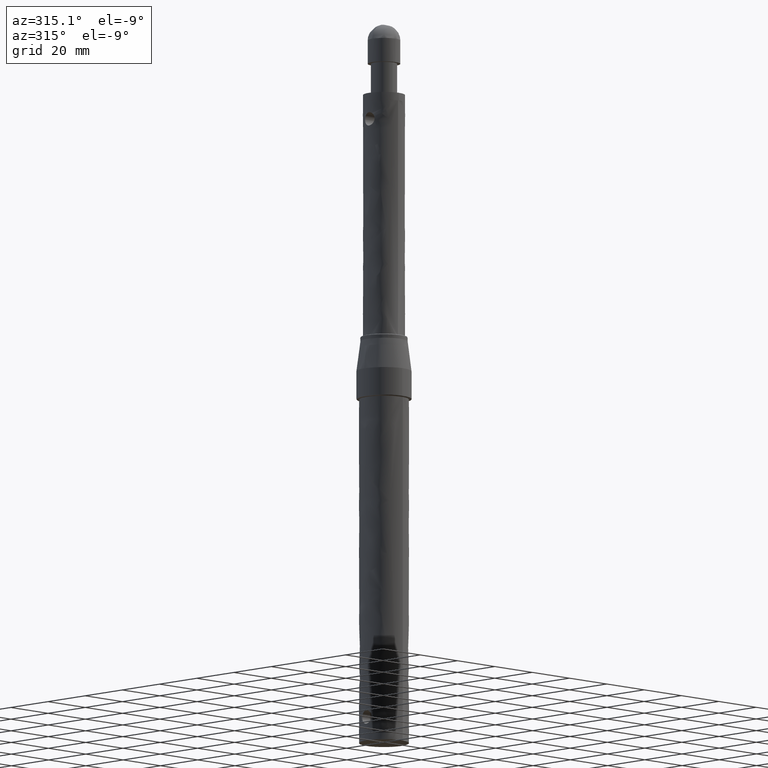
[diagram: clean part render]
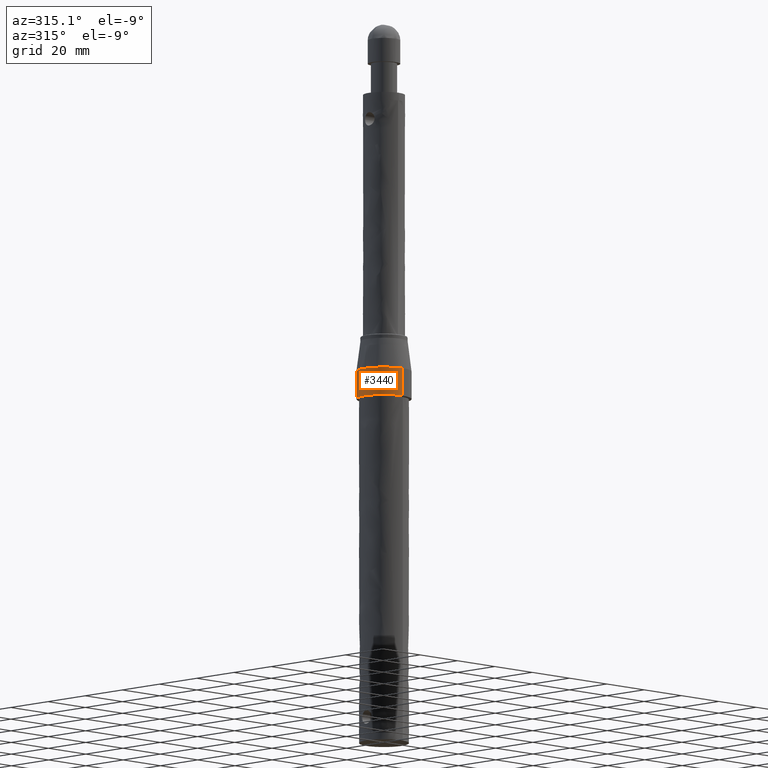
[diagram: same view with one face highlighted and labeled with its STEP entity id]
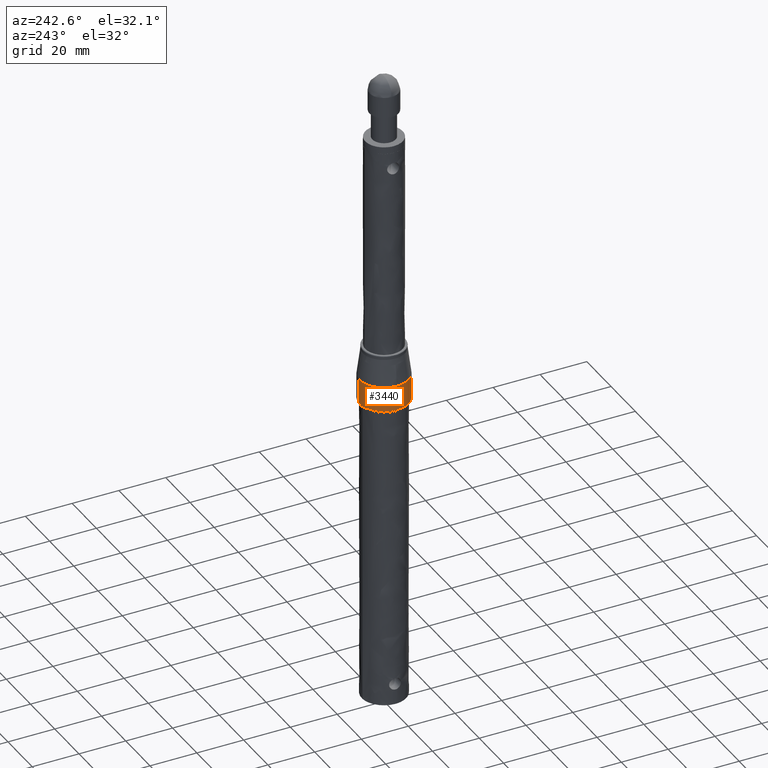
[diagram: same view with one face highlighted and labeled with its STEP entity id]
A machine part, auxiliary view. The second image highlights one B-rep face of the part: STEP entity #3440.
A second angle (auxiliary view) of the same face is appended — the face is thin or edge-on in the first view.
In plain terms, the highlighted face is a freeform B-spline surface patch.
Its self-contained STEP definition (entity closure, byte-faithful):
#2692=CARTESIAN_POINT('',(0.641009665748513,10.480415383404720,-13.136567573650060));
#2693=VERTEX_POINT('',#2692);
#2707=CARTESIAN_POINT('',(-10.500000000763130,0.0,-13.136567573652300));
#2708=VERTEX_POINT('',#2707);
#2709=CARTESIAN_POINT('',(0.641009665748513,10.480415383404726,-13.136567573650058));
#2710=CARTESIAN_POINT('',(0.320804015142102,10.499999999986445,-13.136567573650126));
#2711=CARTESIAN_POINT('',(3.807473E-010,10.499999999986651,-13.136567573650190));
#2712=CARTESIAN_POINT('',(-10.500000000763523,10.499999999993531,-13.136567573652300));
#2713=CARTESIAN_POINT('',(-10.500000000763130,0.0,-13.136567573652300));
#2721=(BOUNDED_CURVE()B_SPLINE_CURVE(2,(#2709,#2710,#2711,#2712,#2713),.UNSPECIFIED.,.F.,.U.)B_SPLINE_CURVE_WITH_KNOTS((3,2,3),(0.239332962238973,0.250000000000000,0.500000000000000),.UNSPECIFIED.)CURVE()GEOMETRIC_REPRESENTATION_ITEM()RATIONAL_B_SPLINE_CURVE((0.976072041666783,0.987502787899873,1.0,0.707106781186547,1.0))REPRESENTATION_ITEM(''));
#2722=EDGE_CURVE('',#2693,#2708,#2721,.T.);
#2779=CARTESIAN_POINT('',(-0.641009665747094,-10.480415383381469,-13.136567573650320));
#2780=VERTEX_POINT('',#2779);
#2781=CARTESIAN_POINT('',(-10.500000000763130,0.0,-13.136567573652300));
#2782=CARTESIAN_POINT('',(-10.500000000763416,-9.877413701624896,-13.136567573652300));
#2783=CARTESIAN_POINT('',(-0.641009665747094,-10.480415383381473,-13.136567573650325));
#2791=(BOUNDED_CURVE()B_SPLINE_CURVE(2,(#2781,#2782,#2783),.UNSPECIFIED.,.F.,.U.)B_SPLINE_CURVE_WITH_KNOTS((3,3),(0.500000000000000,0.739332962226456),.UNSPECIFIED.)CURVE()GEOMETRIC_REPRESENTATION_ITEM()RATIONAL_B_SPLINE_CURVE((1.0,0.719603993301339,0.976072041639956))REPRESENTATION_ITEM(''));
#2792=EDGE_CURVE('',#2708,#2780,#2791,.T.);
#3374=CARTESIAN_POINT('',(0.641009665115999,10.480415383429600,-23.964085811484789));
#3375=CARTESIAN_POINT('',(-9.839405718313600,11.121425048545600,-23.964085811484786));
#3376=CARTESIAN_POINT('',(-10.480415383429600,0.641009665115999,-23.964085811484789));
#3377=CARTESIAN_POINT('',(-11.121425048545600,-9.839405718313600,-23.964085811484786));
#3378=CARTESIAN_POINT('',(-0.641009665115999,-10.480415383429600,-23.964085811484789));
#3379=CARTESIAN_POINT('',(0.641009665115999,10.480415383429600,-12.865879617702170));
#3380=CARTESIAN_POINT('',(-9.839405718313600,11.121425048545600,-12.865879617702166));
#3381=CARTESIAN_POINT('',(-10.480415383429600,0.641009665115999,-12.865879617702170));
#3382=CARTESIAN_POINT('',(-11.121425048545600,-9.839405718313600,-12.865879617702166));
#3383=CARTESIAN_POINT('',(-0.641009665115999,-10.480415383429600,-12.865879617702170));
#3391=(BOUNDED_SURFACE()B_SPLINE_SURFACE(2,1,((#3374,#3379),(#3375,#3380),(#3376,#3381),(#3377,#3382),(#3378,#3383)),.UNSPECIFIED.,.F.,.F.,.U.)B_SPLINE_SURFACE_WITH_KNOTS((3,2,3),(2,2),(0.0,17.396969619669989,34.793939239339970),(0.0,11.098206193782620),.UNSPECIFIED.)GEOMETRIC_REPRESENTATION_ITEM()RATIONAL_B_SPLINE_SURFACE(((1.0,1.0),(0.707106781186548,0.707106781186548),(1.0,1.0),(0.707106781186548,0.707106781186548),(1.0,1.0)))REPRESENTATION_ITEM('')SURFACE());
#3392=ORIENTED_EDGE('',*,*,#2722,.F.);
#3393=CARTESIAN_POINT('',(0.641009665747674,10.480415383390969,-23.700000000805829));
#3394=VERTEX_POINT('',#3393);
#3395=CARTESIAN_POINT('',(0.641009665747674,10.480415383390969,-23.700000000805829));
#3396=CARTESIAN_POINT('',(0.641009665748513,10.480415383404720,-13.136567573650060));
#3397=QUASI_UNIFORM_CURVE('',1,(#3395,#3396),.UNSPECIFIED.,.F.,.U.);
#3398=EDGE_CURVE('',#3394,#2693,#3397,.T.);
#3399=ORIENTED_EDGE('',*,*,#3398,.F.);
#3400=CARTESIAN_POINT('',(-10.500000000000000,4.425539E-016,-23.700000000805829));
#3401=VERTEX_POINT('',#3400);
#3402=CARTESIAN_POINT('',(0.641009665747675,10.480415383390971,-23.700000000805833));
#3403=CARTESIAN_POINT('',(0.320804014951908,10.500000000000004,-23.700000000805836));
#3404=CARTESIAN_POINT('',(0.0,10.500000000000000,-23.700000000805829));
#3405=CARTESIAN_POINT('',(-10.499999999999998,10.500000000000000,-23.700000000805826));
#3406=CARTESIAN_POINT('',(-10.500000000000000,4.425539E-016,-23.700000000805829));
#3414=(BOUNDED_CURVE()B_SPLINE_CURVE(2,(#3402,#3403,#3404,#3405,#3406),.UNSPECIFIED.,.F.,.U.)B_SPLINE_CURVE_WITH_KNOTS((3,2,3),(0.239332962231569,0.250000000000000,0.500000000000000),.UNSPECIFIED.)CURVE()GEOMETRIC_REPRESENTATION_ITEM()RATIONAL_B_SPLINE_CURVE((0.976072041650913,0.987502787891198,1.0,0.707106781186547,1.0))REPRESENTATION_ITEM(''));
#3415=EDGE_CURVE('',#3394,#3401,#3414,.T.);
#3416=ORIENTED_EDGE('',*,*,#3415,.T.);
#3417=CARTESIAN_POINT('',(-0.641009665747673,-10.480415383390969,-23.700000000805829));
#3418=VERTEX_POINT('',#3417);
#3419=CARTESIAN_POINT('',(-10.500000000000000,4.425539E-016,-23.700000000805829));
#3420=CARTESIAN_POINT('',(-10.499999999999996,-9.877413701913351,-23.700000000805833));
#3421=CARTESIAN_POINT('',(-0.641009665747675,-10.480415383390971,-23.700000000805833));
#3429=(BOUNDED_CURVE()B_SPLINE_CURVE(2,(#3419,#3420,#3421),.UNSPECIFIED.,.F.,.U.)B_SPLINE_CURVE_WITH_KNOTS((3,3),(0.500000000000000,0.739332962231569),.UNSPECIFIED.)CURVE()GEOMETRIC_REPRESENTATION_ITEM()RATIONAL_B_SPLINE_CURVE((1.0,0.719603993295350,0.976072041650913))REPRESENTATION_ITEM(''));
#3430=EDGE_CURVE('',#3401,#3418,#3429,.T.);
#3431=ORIENTED_EDGE('',*,*,#3430,.T.);
#3432=CARTESIAN_POINT('',(-0.641009665747673,-10.480415383390969,-23.700000000805829));
#3433=CARTESIAN_POINT('',(-0.641009665747094,-10.480415383381469,-13.136567573650320));
#3434=QUASI_UNIFORM_CURVE('',1,(#3432,#3433),.UNSPECIFIED.,.F.,.U.);
#3435=EDGE_CURVE('',#3418,#2780,#3434,.T.);
#3436=ORIENTED_EDGE('',*,*,#3435,.T.);
#3437=ORIENTED_EDGE('',*,*,#2792,.F.);
#3438=EDGE_LOOP('',(#3392,#3399,#3416,#3431,#3436,#3437));
#3439=FACE_OUTER_BOUND('',#3438,.T.);
#3440=ADVANCED_FACE('',(#3439),#3391,.T.);